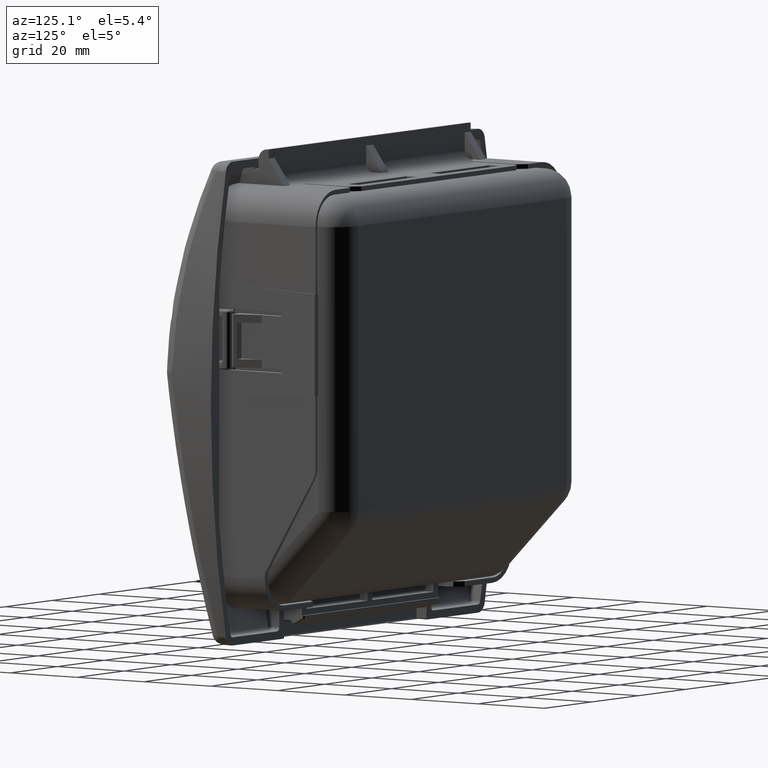
[diagram: clean part render]
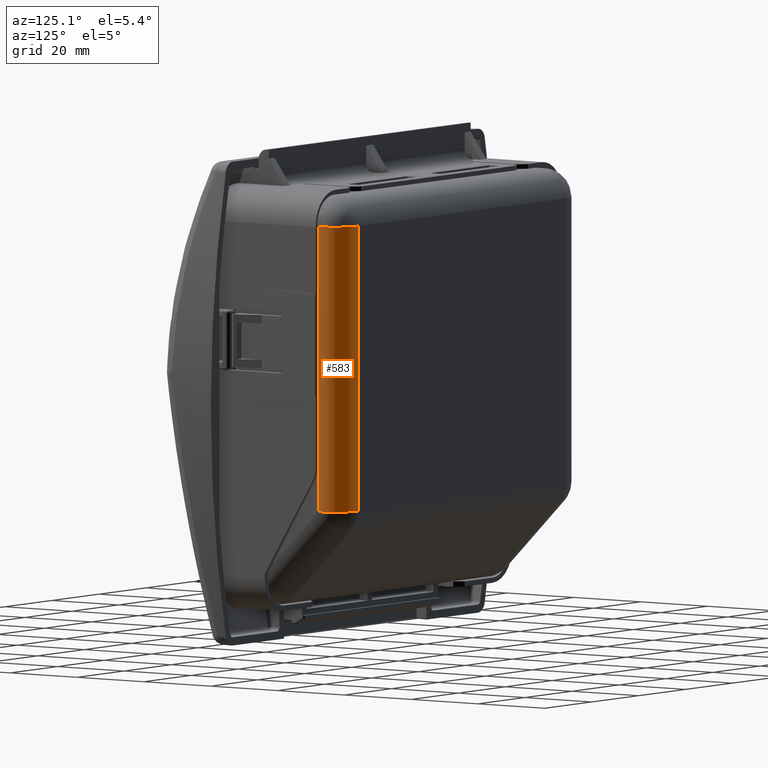
[diagram: same view with one face highlighted and labeled with its STEP entity id]
A machine part, auxiliary view. The second image highlights one B-rep face of the part: STEP entity #583.
In plain terms, the highlighted cylindrical surface (edge-blend (fillet) strip) has radius 7 mm, axis along (0, 0, -1).
Its self-contained STEP definition (entity closure, byte-faithful):
#583=ADVANCED_FACE('',(#5206),#5205,.T.);
#5205=CYLINDRICAL_SURFACE('',#12271,7.00000000000E+00);
#5206=FACE_OUTER_BOUND('',#12272,.T.);
#12268=CARTESIAN_POINT('',(-1.54150344491E+02,2.50000000000E+01,-2.52986260639E+01));
#12269=DIRECTION('',(5.07530525543E-16,2.37948894554E-30,-1.00000000000E+00));
#12270=DIRECTION('',(-1.00000000000E+00,3.04518315326E-15,-5.07530525543E-16));
#12271=AXIS2_PLACEMENT_3D('',#12268,#12269,#12270);
#12272=EDGE_LOOP('',(#18551,#18552,#18553,#18554));
#18551=ORIENTED_EDGE('',*,*,#21069,.F.);
#18552=ORIENTED_EDGE('',*,*,#21070,.T.);
#18553=ORIENTED_EDGE('',*,*,#21071,.T.);
#18554=ORIENTED_EDGE('',*,*,#20927,.T.);
#20927=EDGE_CURVE('',#28392,#28347,#28603,.T.);
#21069=EDGE_CURVE('',#29517,#28347,#29536,.T.);
#21070=EDGE_CURVE('',#29517,#29542,#29543,.T.);
#21071=EDGE_CURVE('',#29542,#28392,#29549,.T.);
#28347=VERTEX_POINT('',#38044);
#28392=VERTEX_POINT('',#38072);
#28603=LINE('',#38200,#38201);
#29517=VERTEX_POINT('',#38758);
#29536=CIRCLE('',#38772,7.00000000000E+00);
#29542=VERTEX_POINT('',#38773);
#29543=LINE('',#38774,#38775);
#29549=CIRCLE('',#38780,7.00000000000E+00);
#38044=CARTESIAN_POINT('',(-1.54150344491E+02,3.20000000000E+01,4.47999999995E+01));
#38072=CARTESIAN_POINT('',(-1.54150344491E+02,3.20000000000E+01,-2.52986260639E+01));
#38200=CARTESIAN_POINT('',(-1.54150344491E+02,3.20000000000E+01,-2.52986260639E+01));
#38201=VECTOR('',#38202,7.00986260634E+01);
#38202=DIRECTION('',(0.00000000000E+00,0.00000000000E+00,1.00000000000E+00));
#38758=CARTESIAN_POINT('',(-1.47150344491E+02,2.50000000000E+01,4.47999999995E+01));
#38769=CARTESIAN_POINT('',(-1.54150344491E+02,2.50000000000E+01,4.47999999995E+01));
#38770=DIRECTION('',(-2.03012210217E-15,0.00000000000E+00,1.00000000000E+00));
#38771=DIRECTION('',(-1.00000000000E+00,-4.06024420434E-15,-2.03012210217E-15));
#38772=AXIS2_PLACEMENT_3D('',#38769,#38770,#38771);
#38773=CARTESIAN_POINT('',(-1.47150344491E+02,2.50000000000E+01,-2.52986260639E+01));
#38774=CARTESIAN_POINT('',(-1.47150344491E+02,2.50000000000E+01,4.47999999995E+01));
#38775=VECTOR('',#38776,7.00986260634E+01);
#38776=DIRECTION('',(0.00000000000E+00,0.00000000000E+00,-1.00000000000E+00));
#38777=CARTESIAN_POINT('',(-1.54150344491E+02,2.50000000000E+01,-2.52986260639E+01));
#38778=DIRECTION('',(0.00000000000E+00,-0.00000000000E+00,1.00000000000E+00));
#38779=DIRECTION('',(-1.00000000000E+00,-4.06024420434E-15,-0.00000000000E+00));
#38780=AXIS2_PLACEMENT_3D('',#38777,#38778,#38779);